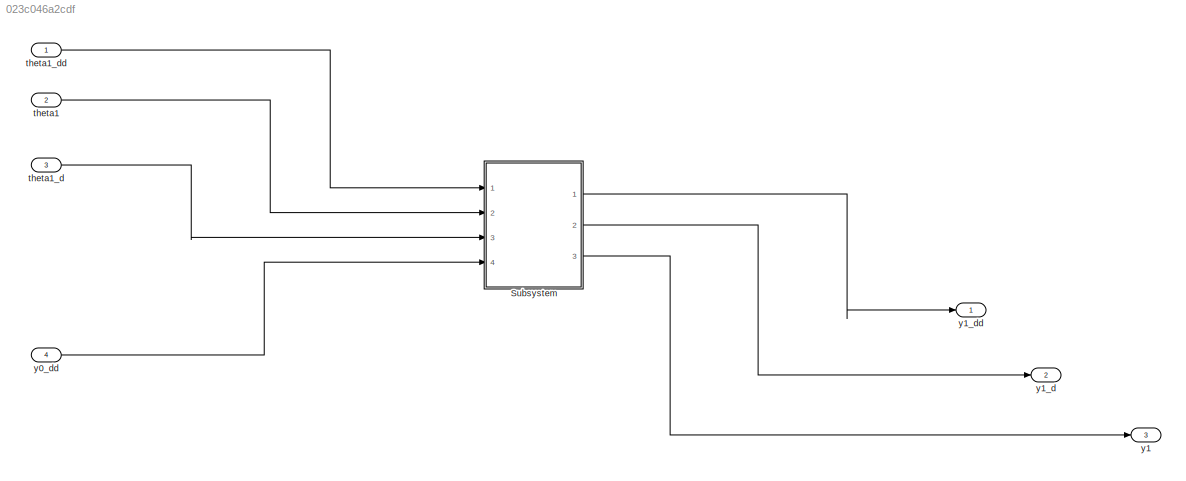
MODEL slx_023c046a2cdf
KIND model
CONFIG AbsTol = auto
CONFIG EnableMultiTasking = off
CONFIG FixedStep = auto
CONFIG MaxStep = auto
CONFIG MinStep = auto
CONFIG RelTol = 1e-3
CONFIG SampleTimeConstraint = Unconstrained
CONFIG Solver = VariableStepAuto
CONFIG SolverName = VariableStepAuto
CONFIG StartTime = 0.0
CONFIG StopTime = 10.0
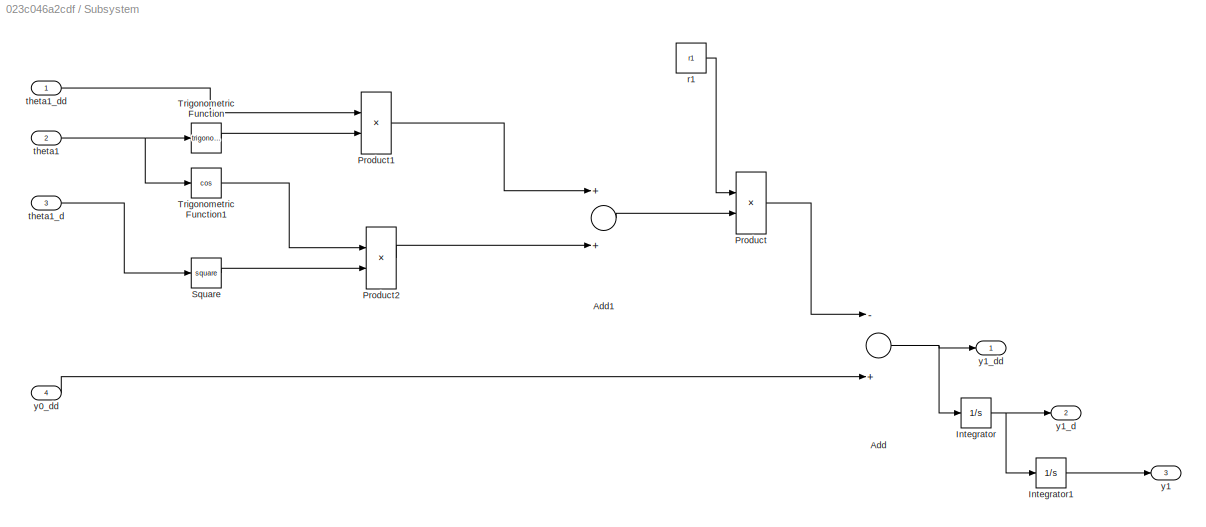
BLOCK [SubSystem] Subsystem
  Ports = [4, 3]
  RequestExecContextInheritance = off
BLOCK [Sum] Subsystem/Add
  InputSameDT = off
  Inputs = -+
  OutDataTypeStr = Inherit: Inherit via internal rule
  Ports = [2, 1]
  SaturateOnIntegerOverflow = off
BLOCK [Sum] Subsystem/Add1
  InputSameDT = off
  OutDataTypeStr = Inherit: Inherit via internal rule
  Ports = [2, 1]
  SaturateOnIntegerOverflow = off
BLOCK [Integrator] Subsystem/Integrator
  InitialCondition = ini_y1_d
  Ports = [1, 1]
BLOCK [Integrator] Subsystem/Integrator1
  InitialCondition = ini_y1
  Ports = [1, 1]
BLOCK [Product] Subsystem/Product
  InputSameDT = off
  OutDataTypeStr = Inherit: Inherit via internal rule
  Ports = [2, 1]
  RndMeth = Floor
  SaturateOnIntegerOverflow = off
BLOCK [Product] Subsystem/Product1
  InputSameDT = off
  OutDataTypeStr = Inherit: Inherit via internal rule
  Ports = [2, 1]
  RndMeth = Floor
  SaturateOnIntegerOverflow = off
BLOCK [Product] Subsystem/Product2
  InputSameDT = off
  OutDataTypeStr = Inherit: Inherit via internal rule
  Ports = [2, 1]
  RndMeth = Floor
  SaturateOnIntegerOverflow = off
BLOCK [Math] Subsystem/Square
  Operator = square
  Ports = [1, 1]
  SignedPower = off
BLOCK [Trigonometry] Subsystem/Trigonometric Function
  Ports = [1, 1]
BLOCK [Trigonometry] Subsystem/Trigonometric Function1
  Operator = cos
  Ports = [1, 1]
BLOCK [Constant] Subsystem/r1
  Value = r1
BLOCK [Inport] Subsystem/theta1
  IconDisplay = Port number
  Port = 2
BLOCK [Inport] Subsystem/theta1_d
  IconDisplay = Port number
  Port = 3
BLOCK [Inport] Subsystem/theta1_dd 
  IconDisplay = Port number
BLOCK [Inport] Subsystem/y0_dd
  IconDisplay = Port number
  Port = 4
BLOCK [Outport] Subsystem/y1
  IconDisplay = Port number
  Port = 3
BLOCK [Outport] Subsystem/y1_d
  IconDisplay = Port number
  Port = 2
BLOCK [Outport] Subsystem/y1_dd
  IconDisplay = Port number
BLOCK [Inport] theta1
  IconDisplay = Port number
  Port = 2
BLOCK [Inport] theta1_d
  IconDisplay = Port number
  Port = 3
BLOCK [Inport] theta1_dd 
  IconDisplay = Port number
BLOCK [Inport] y0_dd
  IconDisplay = Port number
  Port = 4
BLOCK [Outport] y1
  IconDisplay = Port number
  Port = 3
BLOCK [Outport] y1_d
  IconDisplay = Port number
  Port = 2
BLOCK [Outport] y1_dd
  IconDisplay = Port number
LINE Subsystem/Add1:1 -> Subsystem/Product:2
NET Subsystem/Add:1 -> Subsystem/Integrator:1, Subsystem/y1_dd:1
LINE Subsystem/Integrator1:1 -> Subsystem/y1:1
NET Subsystem/Integrator:1 -> Subsystem/Integrator1:1, Subsystem/y1_d:1
LINE Subsystem/Product1:1 -> Subsystem/Add1:1
LINE Subsystem/Product2:1 -> Subsystem/Add1:2
LINE Subsystem/Product:1 -> Subsystem/Add:1
LINE Subsystem/Square:1 -> Subsystem/Product2:2
LINE Subsystem/Trigonometric Function1:1 -> Subsystem/Product2:1
LINE Subsystem/Trigonometric Function:1 -> Subsystem/Product1:2
LINE Subsystem/r1:1 -> Subsystem/Product:1
NET Subsystem/theta1:1 -> Subsystem/Trigonometric Function1:1, Subsystem/Trigonometric Function:1
LINE Subsystem/theta1_d:1 -> Subsystem/Square:1
LINE Subsystem/theta1_dd :1 -> Subsystem/Product1:1
LINE Subsystem/y0_dd:1 -> Subsystem/Add:2
LINE Subsystem:1 -> y1_dd:1
LINE Subsystem:2 -> y1_d:1
LINE Subsystem:3 -> y1:1
LINE theta1:1 -> Subsystem:2
LINE theta1_d:1 -> Subsystem:3
LINE theta1_dd :1 -> Subsystem:1
LINE y0_dd:1 -> Subsystem:4
note: NET lines group one-source signal fan-out (src -> all destinations, sorted); 1:1 wires keep LINE
